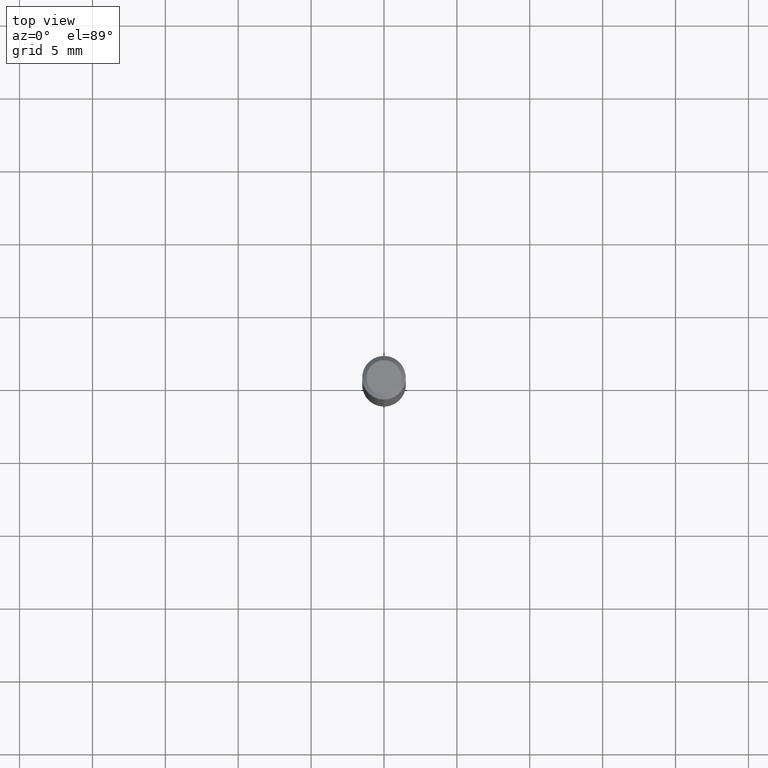
[diagram: clean part render]
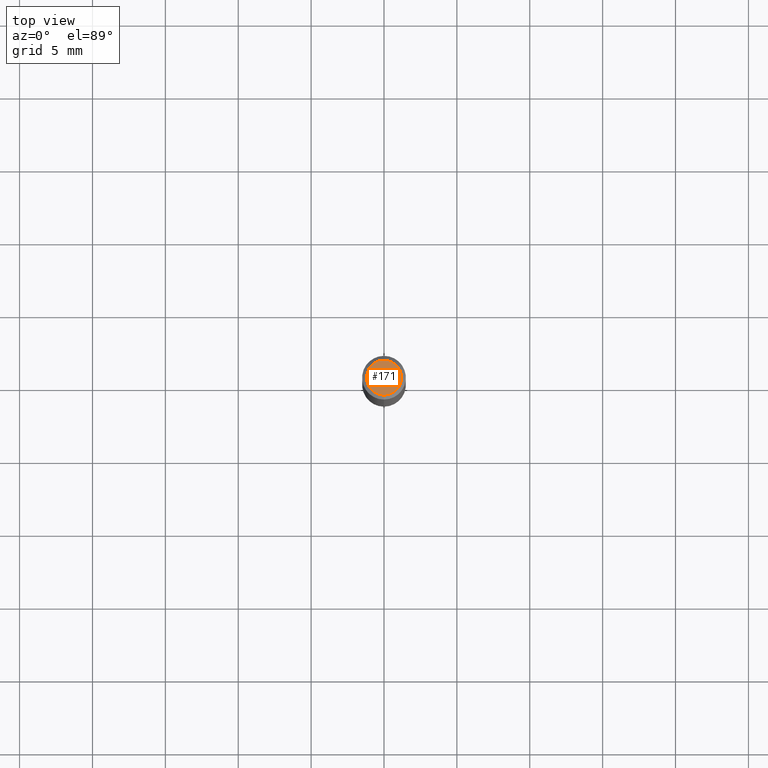
[diagram: same view with one face highlighted and labeled with its STEP entity id]
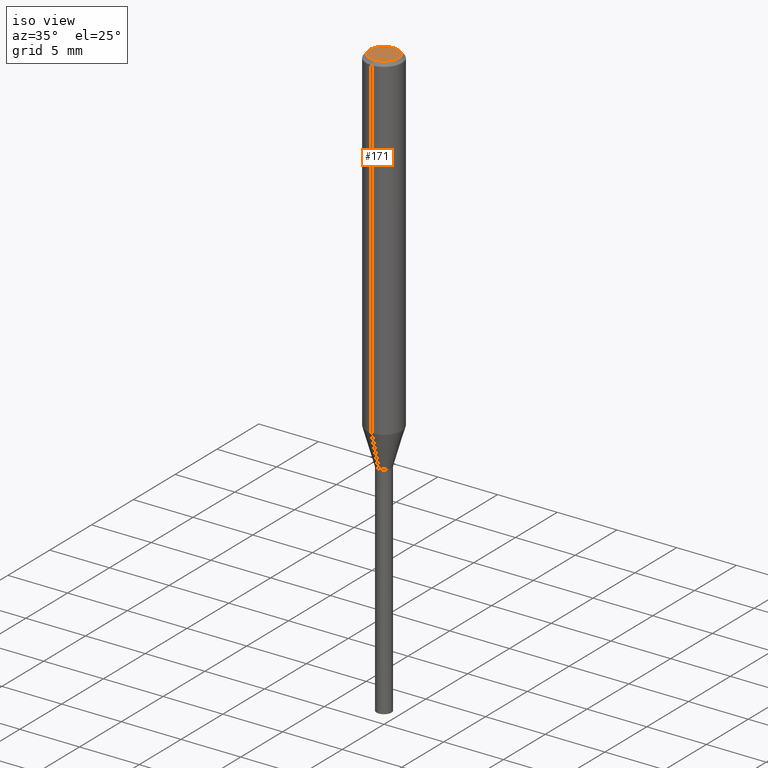
[diagram: same view with one face highlighted and labeled with its STEP entity id]
A machine part, top view. The second image highlights one B-rep face of the part: STEP entity #171.
A second angle (iso view) of the same face is appended — the face is thin or edge-on in the first view.
In plain terms, the highlighted planar face has unit normal (-0, 0, 1).
Its self-contained STEP definition (entity closure, byte-faithful):
#125=EDGE_CURVE('',#205,#179,#265,.T.);
#127=EDGE_CURVE('',#179,#205,#267,.T.);
#171=ADVANCED_FACE('',(#318),#319,.T.);
#179=VERTEX_POINT('',#327);
#205=VERTEX_POINT('',#355);
#265=CIRCLE('',#416,1.2);
#267=CIRCLE('',#419,1.2);
#318=FACE_OUTER_BOUND('',#483,.T.);
#319=PLANE('',#484);
#327=CARTESIAN_POINT('',(1.46952762458685E-016,-1.2,0.0));
#355=CARTESIAN_POINT('',(0.0,1.2,0.0));
#416=AXIS2_PLACEMENT_3D('',#586,#587,#588);
#419=AXIS2_PLACEMENT_3D('',#589,#590,#591);
#483=EDGE_LOOP('',(#668,#669));
#484=AXIS2_PLACEMENT_3D('',#670,#671,#672);
#586=CARTESIAN_POINT('',(0.0,0.0,0.0));
#587=DIRECTION('',(0.0,0.0,-1.0));
#588=DIRECTION('',(0.0,1.0,0.0));
#589=CARTESIAN_POINT('',(0.0,0.0,0.0));
#590=DIRECTION('',(0.0,0.0,-1.0));
#591=DIRECTION('',(0.0,1.0,0.0));
#668=ORIENTED_EDGE('',*,*,#125,.F.);
#669=ORIENTED_EDGE('',*,*,#127,.F.);
#670=CARTESIAN_POINT('',(0.0,0.6,0.0));
#671=DIRECTION('',(-0.0,0.0,1.0));
#672=DIRECTION('',(0.0,-1.0,0.0));